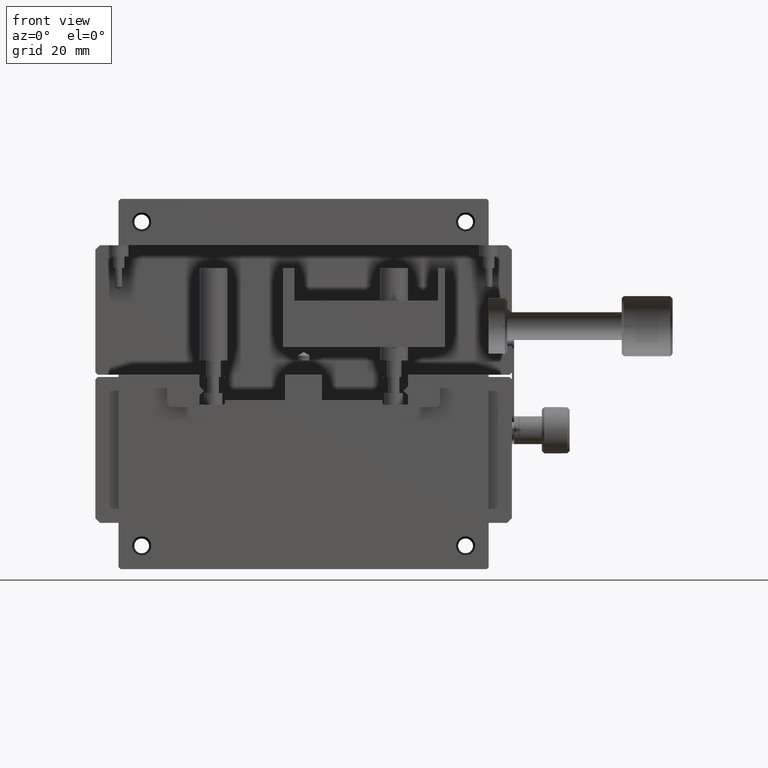
[diagram: clean part render]
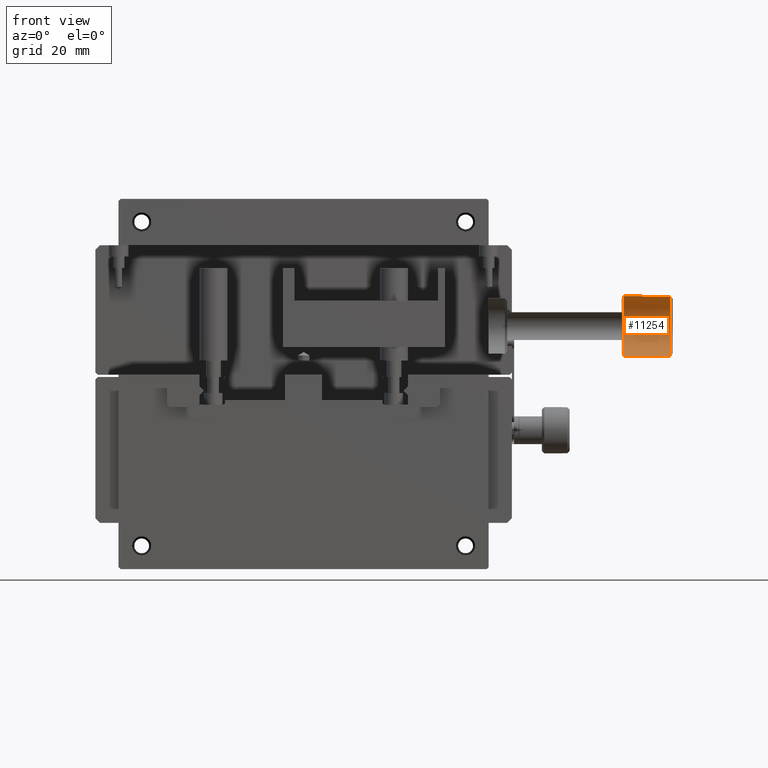
[diagram: same view with one face highlighted and labeled with its STEP entity id]
A machine part, front view. The second image highlights one B-rep face of the part: STEP entity #11254.
In plain terms, the highlighted cylindrical surface (bore or boss wall) has radius 6.5 mm, axis along (1, 0, 0).
Its self-contained STEP definition (entity closure, byte-faithful):
#512 = FACE_OUTER_BOUND ( 'NONE', #3887, .T. ) ;
#802 = CARTESIAN_POINT ( 'NONE',  ( 119.2500000000000142, 13.00000000000000178, -27.50000000000000000 ) ) ;
#1050 = EDGE_LOOP ( 'NONE', ( #3062 ) ) ;
#1530 = FACE_OUTER_BOUND ( 'NONE', #1050, .T. ) ;
#2608 = VERTEX_POINT ( 'NONE', #5239 ) ;
#2952 = CIRCLE ( 'NONE', #8379, 6.499999999991814548 ) ;
#3062 = ORIENTED_EDGE ( 'NONE', *, *, #10210, .F. ) ;
#3168 = EDGE_CURVE ( 'NONE', #6038, #6038, #2952, .T. ) ;
#3293 = CYLINDRICAL_SURFACE ( 'NONE', #4075, 6.500000000000002665 ) ;
#3887 = EDGE_LOOP ( 'NONE', ( #4762 ) ) ;
#4075 = AXIS2_PLACEMENT_3D ( 'NONE', #5190, #8812, #11689 ) ;
#4762 = ORIENTED_EDGE ( 'NONE', *, *, #3168, .T. ) ;
#5190 = CARTESIAN_POINT ( 'NONE',  ( 119.7500000000000142, 13.00000000000000178, -27.50000000000000000 ) ) ;
#5239 = CARTESIAN_POINT ( 'NONE',  ( 119.2500000000000142, 13.00000000000000178, -34.00000000000000000 ) ) ;
#5638 = DIRECTION ( 'NONE',  ( 0.000000000000000000, 0.000000000000000000, -1.000000000000000000 ) ) ;
#6038 = VERTEX_POINT ( 'NONE', #6833 ) ;
#6833 = CARTESIAN_POINT ( 'NONE',  ( 109.2499999999176907, 13.00000000000000178, -33.99999999999181455 ) ) ;
#7451 = AXIS2_PLACEMENT_3D ( 'NONE', #802, #10148, #11860 ) ;
#8379 = AXIS2_PLACEMENT_3D ( 'NONE', #8523, #9499, #5638 ) ;
#8523 = CARTESIAN_POINT ( 'NONE',  ( 109.2499999999176907, 13.00000000000000178, -27.50000000000000000 ) ) ;
#8812 = DIRECTION ( 'NONE',  ( 1.000000000000000000, 0.000000000000000000, 0.000000000000000000 ) ) ;
#9499 = DIRECTION ( 'NONE',  ( -1.000000000000000000, -0.000000000000000000, -0.000000000000000000 ) ) ;
#10148 = DIRECTION ( 'NONE',  ( -1.000000000000000000, -0.000000000000000000, -0.000000000000000000 ) ) ;
#10154 = CIRCLE ( 'NONE', #7451, 6.500000000000002665 ) ;
#10210 = EDGE_CURVE ( 'NONE', #2608, #2608, #10154, .T. ) ;
#11254 = ADVANCED_FACE ( 'NONE', ( #512, #1530 ), #3293, .F. ) ;
#11689 = DIRECTION ( 'NONE',  ( 0.000000000000000000, 0.000000000000000000, -1.000000000000000000 ) ) ;
#11860 = DIRECTION ( 'NONE',  ( 0.000000000000000000, 0.000000000000000000, -1.000000000000000000 ) ) ;